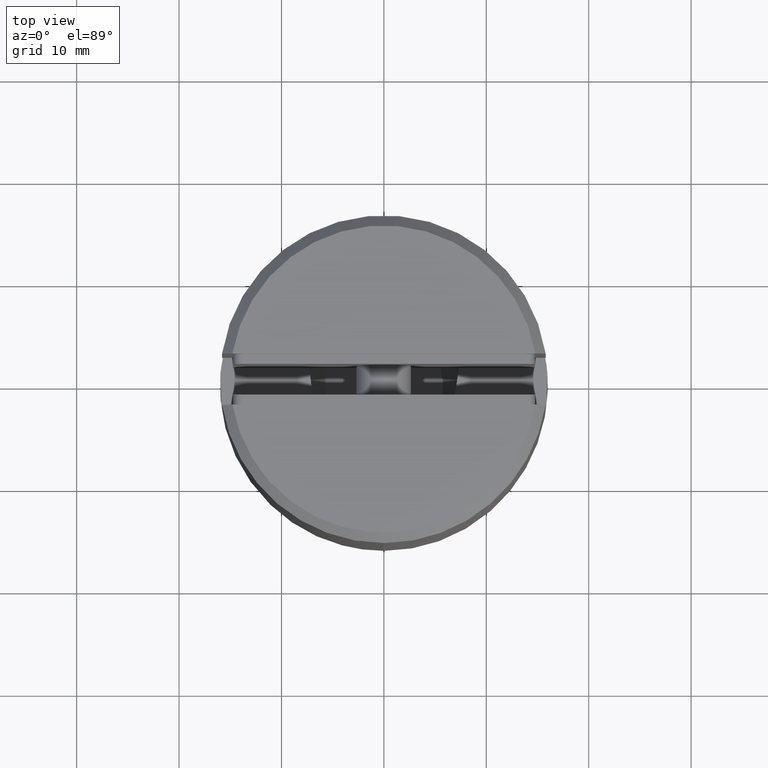
[diagram: clean part render]
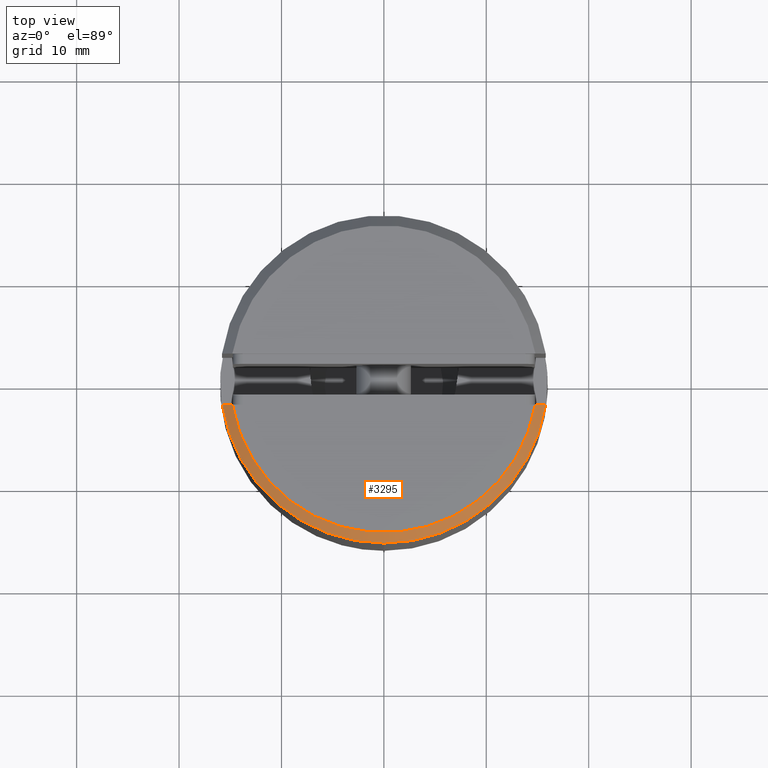
[diagram: same view with one face highlighted and labeled with its STEP entity id]
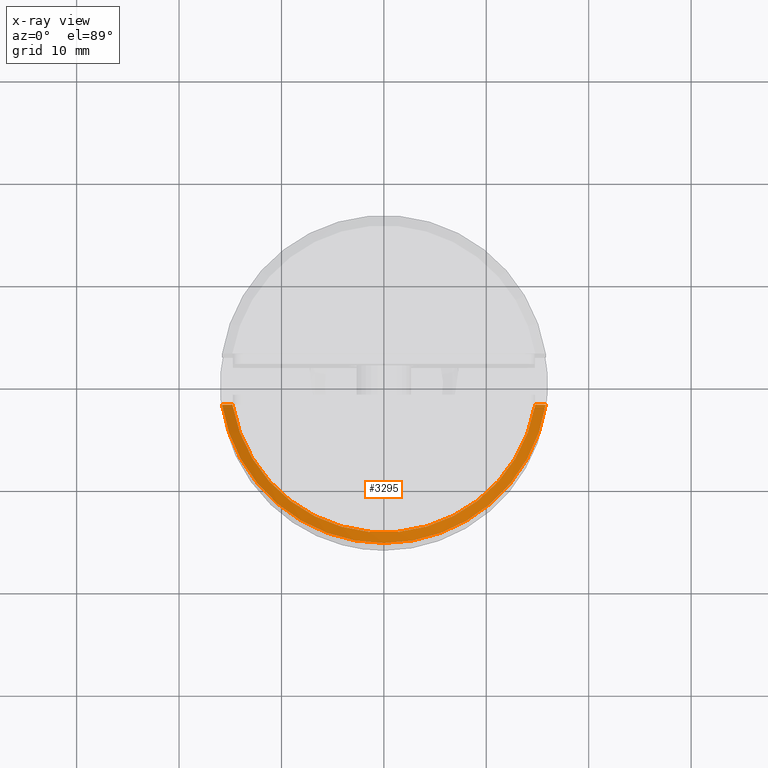
[diagram: x-ray of the same camera — body ghosted, the highlighted face saturated]
A machine part, top view. The second image highlights one B-rep face of the part: STEP entity #3295.
The next image is the same camera in x-ray: the body ghosted, the highlighted face saturated — about 0% of this face is hidden behind the body in this view.
In plain terms, the highlighted conical surface has half-angle 45 deg.
Its self-contained STEP definition (entity closure, byte-faithful):
#207 = CIRCLE ( 'NONE', #7328, 15.00000000000000000 ) ;
#813 = CIRCLE ( 'NONE', #16314, 16.00000000000000000 ) ;
#974 = CARTESIAN_POINT ( 'NONE',  ( -14.79019945774903988, -2.500000000000001332, 40.00000000000000000 ) ) ;
#2814 = B_SPLINE_CURVE_WITH_KNOTS ( 'NONE', 3,
 ( #5453, #5386, #17654, #14488 ),
 .UNSPECIFIED., .F., .F.,
 ( 4, 4 ),
 ( 3.469446951953614189E-18, 0.001423635744345220144 ),
 .UNSPECIFIED. ) ;
#3295 = ADVANCED_FACE ( 'NONE', ( #17236 ), #8786, .T. ) ;
#5014 = DIRECTION ( 'NONE',  ( 0.000000000000000000, -1.917242093807529592E-17, -1.000000000000000000 ) ) ;
#5276 = CARTESIAN_POINT ( 'NONE',  ( -15.80348062927910568, -2.500000000000001332, 38.99999999999999289 ) ) ;
#5386 = CARTESIAN_POINT ( 'NONE',  ( -15.46585946293022218, -2.500000000000001776, 39.33347434765182271 ) ) ;
#5453 = CARTESIAN_POINT ( 'NONE',  ( -15.80348062927910568, -2.500000000000001332, 38.99999999999999289 ) ) ;
#5990 = EDGE_CURVE ( 'NONE', #11529, #6288, #813, .T. ) ;
#6288 = VERTEX_POINT ( 'NONE', #5276 ) ;
#6410 = VERTEX_POINT ( 'NONE', #15931 ) ;
#6613 = ORIENTED_EDGE ( 'NONE', *, *, #5990, .F. ) ;
#6853 = DIRECTION ( 'NONE',  ( -1.000000000000000000, 0.000000000000000000, 0.000000000000000000 ) ) ;
#7328 = AXIS2_PLACEMENT_3D ( 'NONE', #13063, #14762, #6853 ) ;
#7611 = CARTESIAN_POINT ( 'NONE',  ( 15.46585946293022218, -2.500000000000001332, 39.33347434765181561 ) ) ;
#7748 = CARTESIAN_POINT ( 'NONE',  ( 15.12810841561665143, -2.500000000000001332, 39.66681727430518833 ) ) ;
#7897 = ORIENTED_EDGE ( 'NONE', *, *, #15579, .F. ) ;
#8786 = CONICAL_SURFACE ( 'NONE', #12638, 15.00000000000000000, 0.7853981633974447263 ) ;
#9043 = CARTESIAN_POINT ( 'NONE',  ( 15.80348062927910568, -2.500000000000001332, 38.99999999999999289 ) ) ;
#10008 = DIRECTION ( 'NONE',  ( 0.000000000000000000, 1.000000000000000000, 0.000000000000000000 ) ) ;
#10644 = CARTESIAN_POINT ( 'NONE',  ( 14.79019945774903810, -2.500000000000001332, 40.00000000000000000 ) ) ;
#11529 = VERTEX_POINT ( 'NONE', #15260 ) ;
#11569 = EDGE_LOOP ( 'NONE', ( #13036, #6613, #14847, #7897 ) ) ;
#11694 = CARTESIAN_POINT ( 'NONE',  ( 0.000000000000000000, 4.601381025138083840E-16, 38.99999999999999289 ) ) ;
#12589 = CARTESIAN_POINT ( 'NONE',  ( 0.000000000000000000, 4.793105234518837415E-16, 40.00000000000000000 ) ) ;
#12638 = AXIS2_PLACEMENT_3D ( 'NONE', #12589, #5014, #19145 ) ;
#13036 = ORIENTED_EDGE ( 'NONE', *, *, #18784, .F. ) ;
#13063 = CARTESIAN_POINT ( 'NONE',  ( 0.000000000000000000, 4.793105234518837415E-16, 40.00000000000000000 ) ) ;
#14488 = CARTESIAN_POINT ( 'NONE',  ( -14.79019945774903988, -2.500000000000001332, 40.00000000000000000 ) ) ;
#14544 = VERTEX_POINT ( 'NONE', #974 ) ;
#14762 = DIRECTION ( 'NONE',  ( 0.000000000000000000, 0.000000000000000000, 1.000000000000000000 ) ) ;
#14803 = DIRECTION ( 'NONE',  ( 0.000000000000000000, -1.917242093807529592E-17, -1.000000000000000000 ) ) ;
#14847 = ORIENTED_EDGE ( 'NONE', *, *, #17536, .F. ) ;
#15260 = CARTESIAN_POINT ( 'NONE',  ( 15.80348062927910568, -2.500000000000001332, 38.99999999999999289 ) ) ;
#15489 = B_SPLINE_CURVE_WITH_KNOTS ( 'NONE', 3,
 ( #10644, #7748, #7611, #9043 ),
 .UNSPECIFIED., .F., .F.,
 ( 4, 4 ),
 ( 0.000000000000000000, 0.001423635744345217542 ),
 .UNSPECIFIED. ) ;
#15579 = EDGE_CURVE ( 'NONE', #14544, #6410, #207, .T. ) ;
#15931 = CARTESIAN_POINT ( 'NONE',  ( 14.79019945774903810, -2.500000000000001332, 40.00000000000000000 ) ) ;
#16314 = AXIS2_PLACEMENT_3D ( 'NONE', #11694, #14803, #10008 ) ;
#17236 = FACE_OUTER_BOUND ( 'NONE', #11569, .T. ) ;
#17536 = EDGE_CURVE ( 'NONE', #6410, #11529, #15489, .T. ) ;
#17654 = CARTESIAN_POINT ( 'NONE',  ( -15.12810841561664787, -2.500000000000001332, 39.66681727430518833 ) ) ;
#18784 = EDGE_CURVE ( 'NONE', #6288, #14544, #2814, .T. ) ;
#19145 = DIRECTION ( 'NONE',  ( 0.000000000000000000, 1.000000000000000000, 0.000000000000000000 ) ) ;